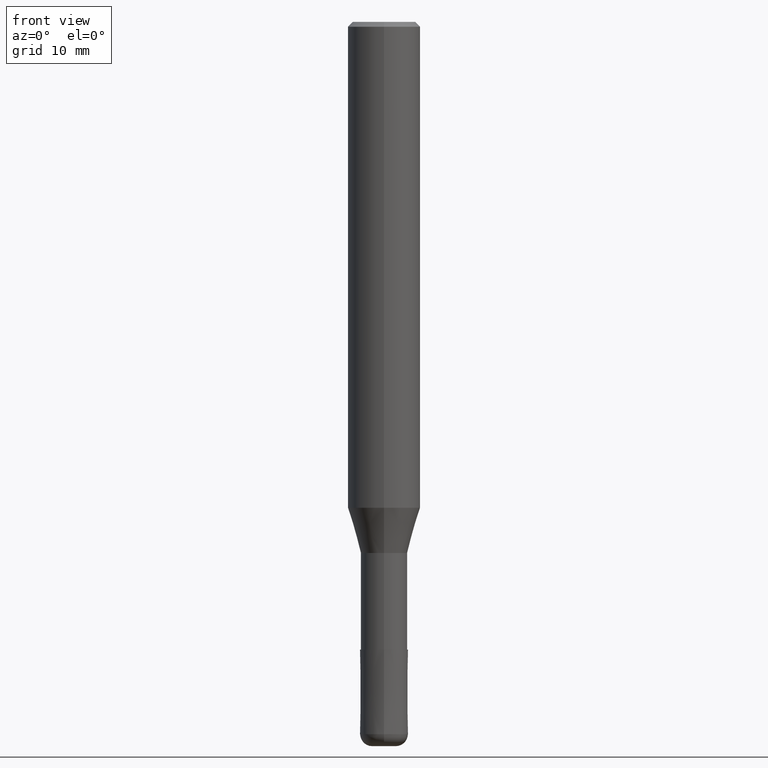
[diagram: clean part render]
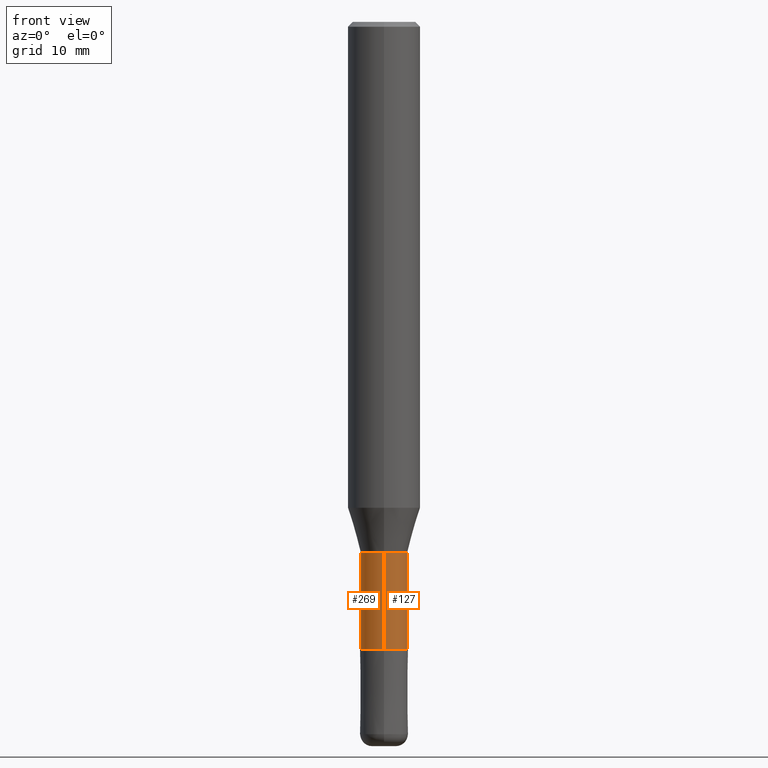
[diagram: same view with one multi-face feature highlighted, each face labeled with its STEP entity id]
A machine part, front view. The highlighted faces form ONE feature: a constant-radius fillet chain: 2 tangent blend faces with common blend radius 1.9249 mm. The faces share edges in the B-rep.
Their STEP definitions:
[1] entity #127 (Cylinder):
#127=ADVANCED_FACE('',(#330),#331,.T.);
#129=EDGE_CURVE('',#283,#137,#333,.T.);
#137=VERTEX_POINT('',#344);
#155=EDGE_CURVE('',#157,#283,#365,.T.);
#157=VERTEX_POINT('',#367);
#175=VERTEX_POINT('',#386);
#235=EDGE_CURVE('',#175,#157,#458,.T.);
#259=EDGE_CURVE('',#175,#137,#483,.T.);
#283=VERTEX_POINT('',#509);
#330=FACE_OUTER_BOUND('',#552,.T.);
#331=CYLINDRICAL_SURFACE('',#553,1.92495);
#333=LINE('',#556,#557);
#344=CARTESIAN_POINT('',(2.35730600079038E-016,-1.92495,-44.0));
#365=CIRCLE('',#592,1.92495);
#367=CARTESIAN_POINT('',(0.0,1.92495,-52.0));
#386=CARTESIAN_POINT('',(0.0,1.92495,-44.0));
#458=LINE('',#714,#715);
#483=CIRCLE('',#746,1.92495);
#509=CARTESIAN_POINT('',(2.35730600079039E-016,-1.92495,-52.0));
#552=EDGE_LOOP('',(#817,#818,#819,#820));
#553=AXIS2_PLACEMENT_3D('',#821,#822,#823);
#556=CARTESIAN_POINT('',(2.35730600079039E-016,-1.92495,-48.0));
#557=VECTOR('',#824,1.0);
#592=AXIS2_PLACEMENT_3D('',#871,#872,#873);
#714=CARTESIAN_POINT('',(-2.35730600079039E-016,1.92495,-48.0));
#715=VECTOR('',#996,1.0);
#746=AXIS2_PLACEMENT_3D('',#1019,#1020,#1021);
#817=ORIENTED_EDGE('',*,*,#235,.F.);
#818=ORIENTED_EDGE('',*,*,#259,.T.);
#819=ORIENTED_EDGE('',*,*,#129,.F.);
#820=ORIENTED_EDGE('',*,*,#155,.F.);
#821=CARTESIAN_POINT('',(0.0,0.0,-48.0));
#822=DIRECTION('',(-0.0,-0.0,1.0));
#823=DIRECTION('',(0.0,1.0,0.0));
#824=DIRECTION('',(-0.0,-0.0,1.0));
#871=CARTESIAN_POINT('',(0.0,0.0,-52.0));
#872=DIRECTION('',(0.0,0.0,-1.0));
#873=DIRECTION('',(0.0,1.0,0.0));
#996=DIRECTION('',(0.0,0.0,-1.0));
#1019=CARTESIAN_POINT('',(0.0,0.0,-44.0));
#1020=DIRECTION('',(0.0,0.0,-1.0));
#1021=DIRECTION('',(0.0,1.0,0.0));
[2] entity #269 (Cylinder):
#129=EDGE_CURVE('',#283,#137,#333,.T.);
#137=VERTEX_POINT('',#344);
#157=VERTEX_POINT('',#367);
#175=VERTEX_POINT('',#386);
#235=EDGE_CURVE('',#175,#157,#458,.T.);
#243=EDGE_CURVE('',#283,#157,#466,.T.);
#247=EDGE_CURVE('',#137,#175,#470,.T.);
#269=ADVANCED_FACE('',(#493),#494,.T.);
#283=VERTEX_POINT('',#509);
#333=LINE('',#556,#557);
#344=CARTESIAN_POINT('',(2.35730600079038E-016,-1.92495,-44.0));
#367=CARTESIAN_POINT('',(0.0,1.92495,-52.0));
#386=CARTESIAN_POINT('',(0.0,1.92495,-44.0));
#458=LINE('',#714,#715);
#466=CIRCLE('',#727,1.92495);
#470=CIRCLE('',#733,1.92495);
#493=FACE_OUTER_BOUND('',#757,.T.);
#494=CYLINDRICAL_SURFACE('',#758,1.92495);
#509=CARTESIAN_POINT('',(2.35730600079039E-016,-1.92495,-52.0));
#556=CARTESIAN_POINT('',(2.35730600079039E-016,-1.92495,-48.0));
#557=VECTOR('',#824,1.0);
#714=CARTESIAN_POINT('',(-2.35730600079039E-016,1.92495,-48.0));
#715=VECTOR('',#996,1.0);
#727=AXIS2_PLACEMENT_3D('',#1001,#1002,#1003);
#733=AXIS2_PLACEMENT_3D('',#1007,#1008,#1009);
#757=EDGE_LOOP('',(#1026,#1027,#1028,#1029));
#758=AXIS2_PLACEMENT_3D('',#1030,#1031,#1032);
#824=DIRECTION('',(-0.0,-0.0,1.0));
#996=DIRECTION('',(0.0,0.0,-1.0));
#1001=CARTESIAN_POINT('',(0.0,0.0,-52.0));
#1002=DIRECTION('',(0.0,0.0,-1.0));
#1003=DIRECTION('',(0.0,1.0,0.0));
#1007=CARTESIAN_POINT('',(0.0,0.0,-44.0));
#1008=DIRECTION('',(0.0,0.0,-1.0));
#1009=DIRECTION('',(0.0,1.0,0.0));
#1026=ORIENTED_EDGE('',*,*,#235,.T.);
#1027=ORIENTED_EDGE('',*,*,#243,.F.);
#1028=ORIENTED_EDGE('',*,*,#129,.T.);
#1029=ORIENTED_EDGE('',*,*,#247,.T.);
#1030=CARTESIAN_POINT('',(0.0,0.0,-48.0));
#1031=DIRECTION('',(-0.0,-0.0,1.0));
#1032=DIRECTION('',(0.0,1.0,0.0));